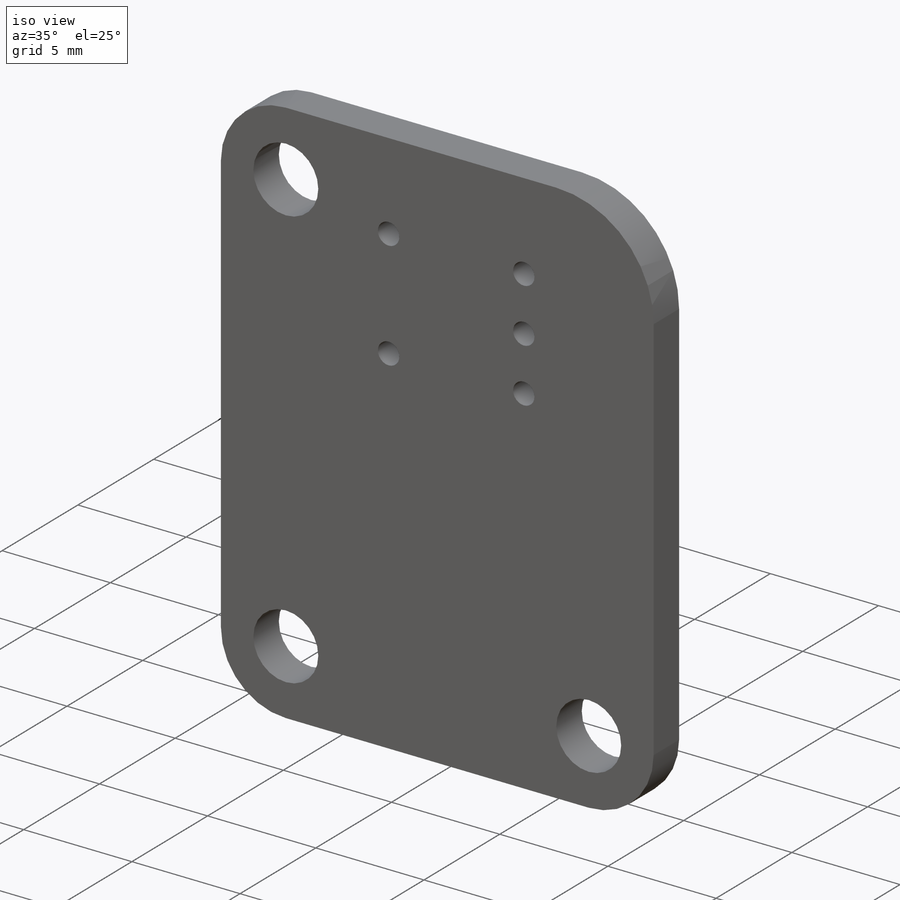
[diagram: iso view]
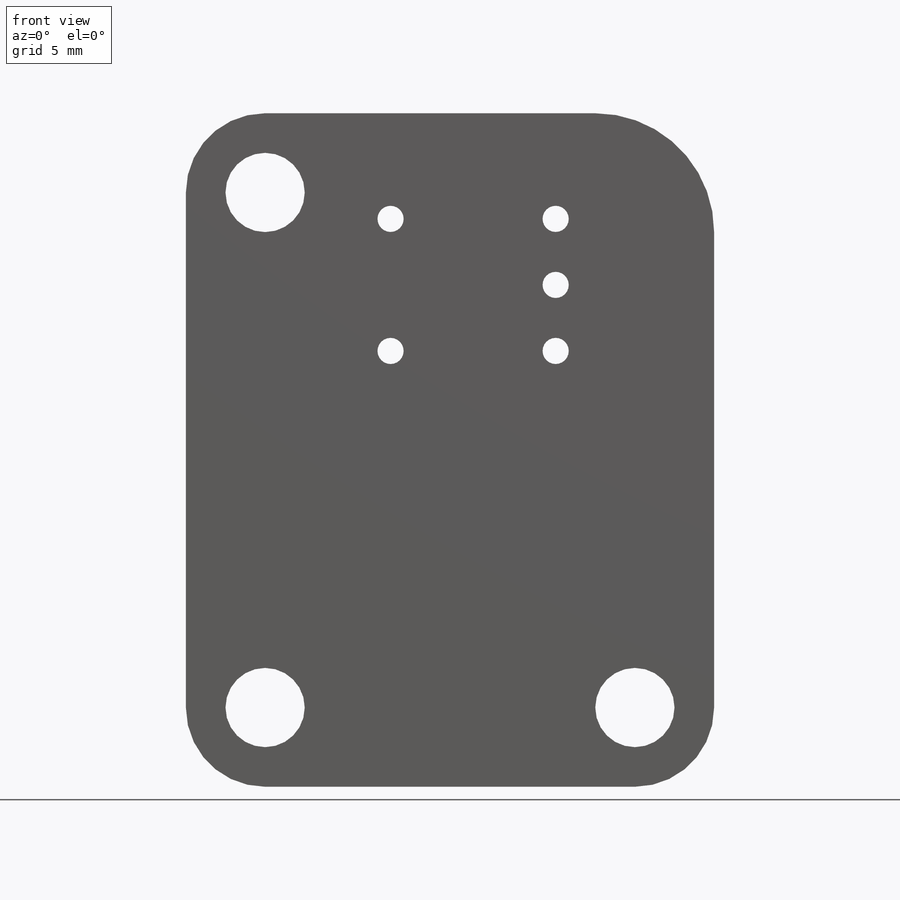
[diagram: front view]
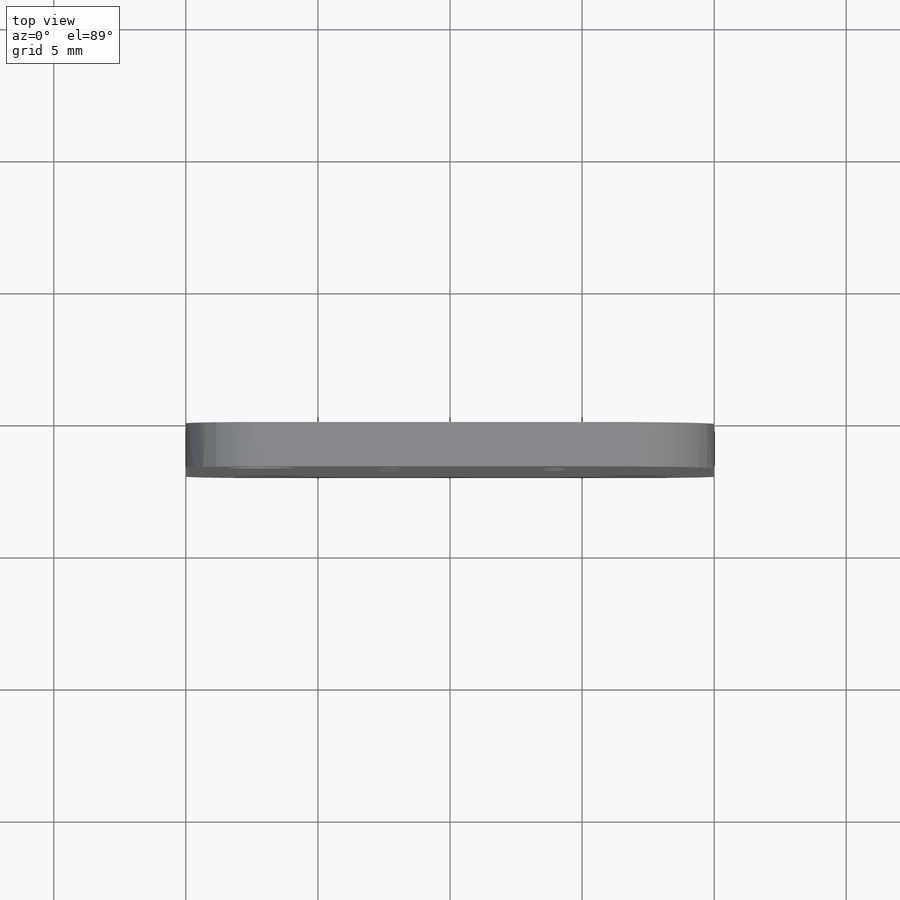
[diagram: top view]
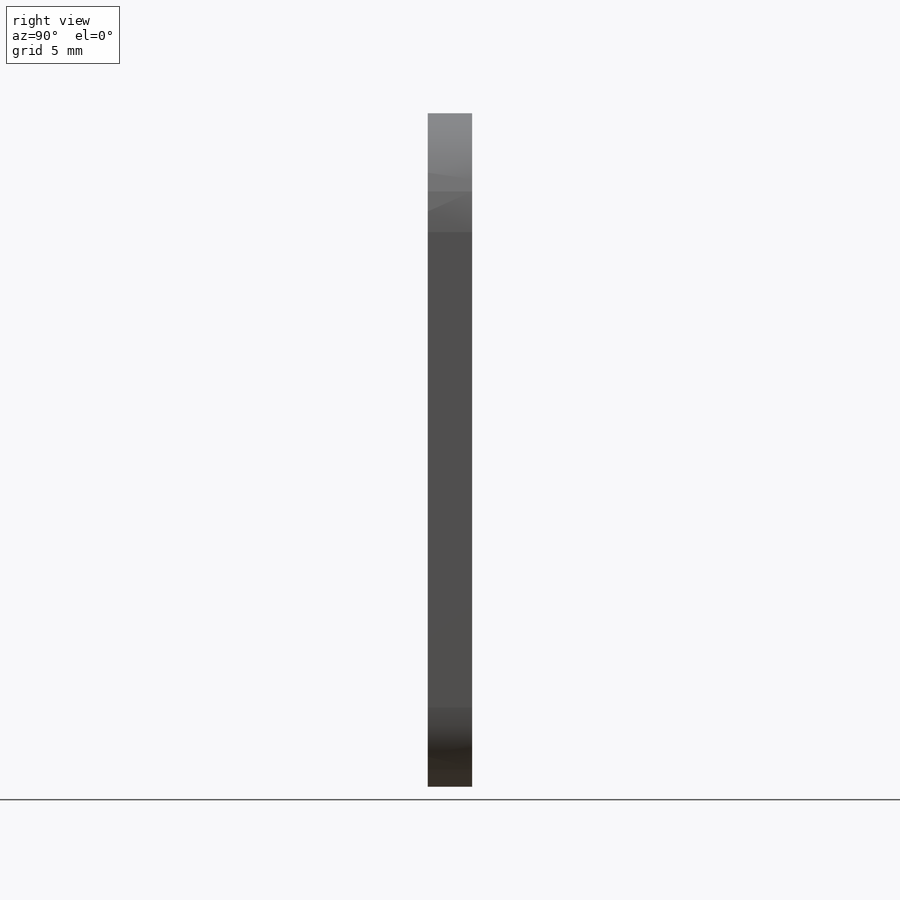
[diagram: right view]
SOLIDWORKS PART (.sldprt)
format: sldprt  version: not decoded by parser v0  size: 345,600 bytes
history: native  units: mm
features: sketch x5, extrude x2, material x1, cut_extrude x1, plane x1 (+11 scaffold rows collapsed)
feature tree (21):
  scaffold x11  (default folders/planes/origin — collapsed)
  material  "Material <not specified>"
  sketch  "Sketch1"  dims[c1.D2=1.0mm c1.D4=3.0mm c1.D1=10.16mm c1.D3=3.81mm c1.D5=29.0mm c2.D1=25.0mm]
  extrude  "BOARD"  Depth=1.68mm
  sketch  "Sketch2"  dims[D1=3.0mm]
  cut_extrude  "PLATED HOLES"  [1 undecoded]
  plane  "Plane1"
  sketch  "Sketch3"
  extrude  "ENCODER_PEC09-2320F-S0015-1"  Depth=0.0254mm
  sketch  "Sketch4"
  sketch  "Sketch5"  dims[D3=1.778mm D1=1.524mm D2=7.62mm D4=2.54mm]
decode coverage: 5 of 8 modeling features carry decoded parameters
note: 1 parameter value undecoded
note: suppression state not decoded; provenance and decode notes live in map.json
